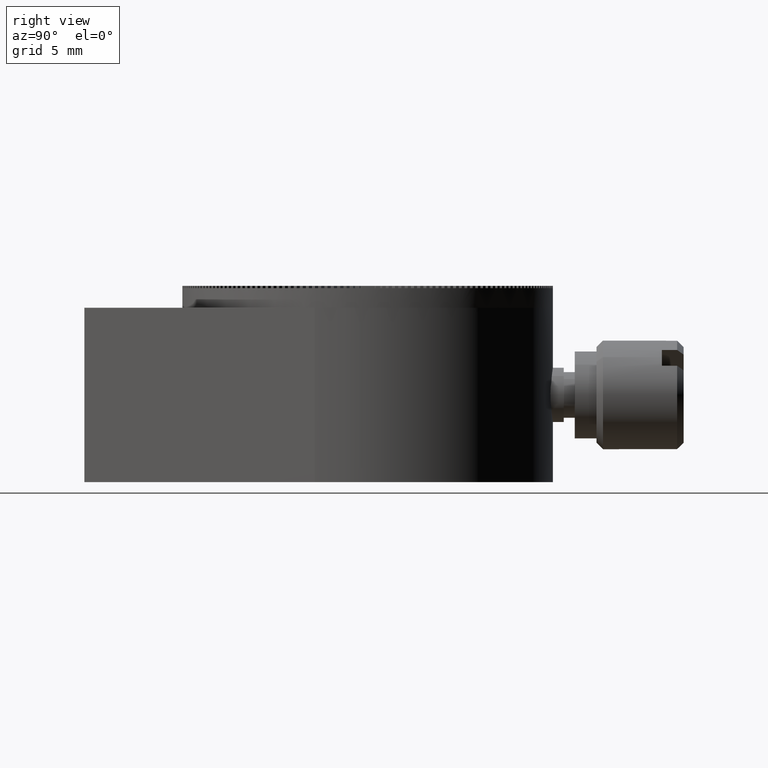
[diagram: clean part render]
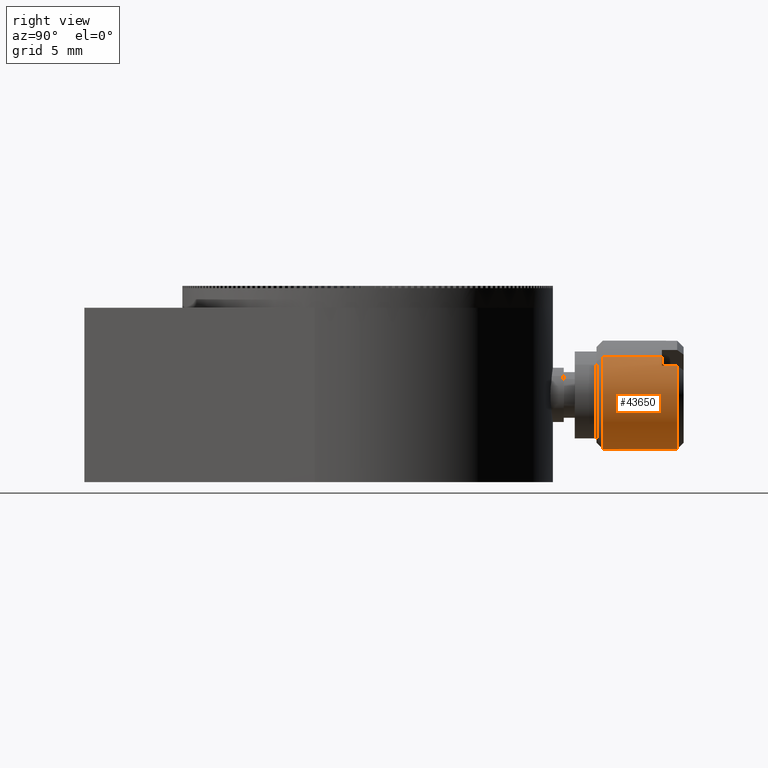
[diagram: same view with one face highlighted and labeled with its STEP entity id]
A machine part, right view. The second image highlights one B-rep face of the part: STEP entity #43650.
In plain terms, the highlighted cylindrical surface (partial cylindrical patch) has radius 2.5 mm, axis along (-0, -1, 0).
Its self-contained STEP definition (entity closure, byte-faithful):
#908 = EDGE_LOOP ( 'NONE', ( #43236, #14754, #36336, #49756, #45822, #11884, #62226, #10925 ) ) ;
#967 = DIRECTION ( 'NONE',  ( 0.000000000000000000, 0.000000000000000000, 1.000000000000000000 ) ) ;
#1867 = CARTESIAN_POINT ( 'NONE',  ( 0.5000000000000000000, 4.699999999999999289, 2.449489742783178325 ) ) ;
#2856 = CARTESIAN_POINT ( 'NONE',  ( 0.000000000000000000, 4.000000000000000000, -2.500000000000000000 ) ) ;
#4821 = VECTOR ( 'NONE', #29275, 1000.000000000000000 ) ;
#5715 = EDGE_CURVE ( 'NONE', #47017, #42769, #57062, .T. ) ;
#6314 = CARTESIAN_POINT ( 'NONE',  ( 0.000000000000000000, 5.000000000000000000, 0.000000000000000000 ) ) ;
#7004 = CARTESIAN_POINT ( 'NONE',  ( 0.5000000000000000000, 5.000000000000000000, 2.449489742783178325 ) ) ;
#7009 = EDGE_CURVE ( 'NONE', #57847, #35879, #58336, .T. ) ;
#9555 = CIRCLE ( 'NONE', #36247, 2.500000000000000000 ) ;
#10052 = VECTOR ( 'NONE', #12141, 1000.000000000000000 ) ;
#10499 = DIRECTION ( 'NONE',  ( 0.000000000000000000, 0.000000000000000000, -1.000000000000000000 ) ) ;
#10925 = ORIENTED_EDGE ( 'NONE', *, *, #5715, .T. ) ;
#11884 = ORIENTED_EDGE ( 'NONE', *, *, #60293, .T. ) ;
#12141 = DIRECTION ( 'NONE',  ( -0.000000000000000000, -1.000000000000000000, -0.000000000000000000 ) ) ;
#12897 = AXIS2_PLACEMENT_3D ( 'NONE', #43222, #62815, #38416 ) ;
#13852 = CARTESIAN_POINT ( 'NONE',  ( 0.5000000000000000000, 4.000000000000000000, 2.449489742783178325 ) ) ;
#14754 = ORIENTED_EDGE ( 'NONE', *, *, #7009, .T. ) ;
#15374 = CARTESIAN_POINT ( 'NONE',  ( 3.061616997868383141E-16, 1.300000000000001155, 2.500000000000000000 ) ) ;
#16248 = VERTEX_POINT ( 'NONE', #29937 ) ;
#20650 = VERTEX_POINT ( 'NONE', #24905 ) ;
#21002 = AXIS2_PLACEMENT_3D ( 'NONE', #41572, #35807, #30985 ) ;
#24905 = CARTESIAN_POINT ( 'NONE',  ( 0.5000000000000000000, 4.699999999999999289, -2.449489742783178325 ) ) ;
#25425 = LINE ( 'NONE', #33792, #4821 ) ;
#26512 = VERTEX_POINT ( 'NONE', #55208 ) ;
#29275 = DIRECTION ( 'NONE',  ( -0.000000000000000000, -1.000000000000000000, -0.000000000000000000 ) ) ;
#29937 = CARTESIAN_POINT ( 'NONE',  ( 0.000000000000000000, 1.300000000000001155, -2.500000000000000000 ) ) ;
#30985 = DIRECTION ( 'NONE',  ( 0.000000000000000000, 0.000000000000000000, 1.000000000000000000 ) ) ;
#32105 = CIRCLE ( 'NONE', #37181, 2.500000000000000000 ) ;
#32970 = VERTEX_POINT ( 'NONE', #2856 ) ;
#33300 = DIRECTION ( 'NONE',  ( -0.000000000000000000, -1.000000000000000000, -0.000000000000000000 ) ) ;
#33507 = EDGE_CURVE ( 'NONE', #57847, #42769, #32105, .T. ) ;
#33792 = CARTESIAN_POINT ( 'NONE',  ( 0.000000000000000000, 5.000000000000000000, -2.500000000000000000 ) ) ;
#34894 = DIRECTION ( 'NONE',  ( -0.000000000000000000, -1.000000000000000000, -0.000000000000000000 ) ) ;
#35095 = EDGE_CURVE ( 'NONE', #20650, #47017, #9555, .T. ) ;
#35807 = DIRECTION ( 'NONE',  ( 0.000000000000000000, 1.000000000000000000, 0.000000000000000000 ) ) ;
#35879 = VERTEX_POINT ( 'NONE', #15374 ) ;
#36247 = AXIS2_PLACEMENT_3D ( 'NONE', #44932, #50359, #967 ) ;
#36336 = ORIENTED_EDGE ( 'NONE', *, *, #59250, .T. ) ;
#37014 = EDGE_CURVE ( 'NONE', #26512, #32970, #50665, .T. ) ;
#37165 = DIRECTION ( 'NONE',  ( 0.000000000000000000, 1.000000000000000000, 0.000000000000000000 ) ) ;
#37181 = AXIS2_PLACEMENT_3D ( 'NONE', #61450, #48234, #53373 ) ;
#38416 = DIRECTION ( 'NONE',  ( 0.000000000000000000, 0.000000000000000000, -1.000000000000000000 ) ) ;
#40522 = CIRCLE ( 'NONE', #12897, 2.500000000000000000 ) ;
#41022 = CARTESIAN_POINT ( 'NONE',  ( 0.5000000000000000000, 5.000000000000000000, -2.449489742783178325 ) ) ;
#41572 = CARTESIAN_POINT ( 'NONE',  ( 0.000000000000000000, 4.000000000000000000, 0.000000000000000000 ) ) ;
#42769 = VERTEX_POINT ( 'NONE', #13852 ) ;
#43222 = CARTESIAN_POINT ( 'NONE',  ( 0.000000000000000000, 1.300000000000001155, 0.000000000000000000 ) ) ;
#43236 = ORIENTED_EDGE ( 'NONE', *, *, #33507, .F. ) ;
#43650 = ADVANCED_FACE ( 'NONE', ( #44201 ), #44839, .T. ) ;
#44201 = FACE_OUTER_BOUND ( 'NONE', #908, .T. ) ;
#44839 = CYLINDRICAL_SURFACE ( 'NONE', #46940, 2.500000000000000000 ) ;
#44932 = CARTESIAN_POINT ( 'NONE',  ( 0.000000000000000000, 4.699999999999999289, 0.000000000000000000 ) ) ;
#45822 = ORIENTED_EDGE ( 'NONE', *, *, #37014, .F. ) ;
#45838 = LINE ( 'NONE', #41022, #61183 ) ;
#46940 = AXIS2_PLACEMENT_3D ( 'NONE', #6314, #34894, #10499 ) ;
#47017 = VERTEX_POINT ( 'NONE', #1867 ) ;
#47716 = CARTESIAN_POINT ( 'NONE',  ( 3.061616997868383141E-16, 4.000000000000000000, 2.500000000000000000 ) ) ;
#48234 = DIRECTION ( 'NONE',  ( 0.000000000000000000, 1.000000000000000000, 0.000000000000000000 ) ) ;
#49756 = ORIENTED_EDGE ( 'NONE', *, *, #61448, .F. ) ;
#50359 = DIRECTION ( 'NONE',  ( 0.000000000000000000, -1.000000000000000000, 0.000000000000000000 ) ) ;
#50665 = CIRCLE ( 'NONE', #21002, 2.500000000000000000 ) ;
#53373 = DIRECTION ( 'NONE',  ( 0.000000000000000000, 0.000000000000000000, 1.000000000000000000 ) ) ;
#54139 = CARTESIAN_POINT ( 'NONE',  ( 3.061616997868383141E-16, 5.000000000000000000, 2.500000000000000000 ) ) ;
#55208 = CARTESIAN_POINT ( 'NONE',  ( 0.5000000000000000000, 4.000000000000000000, -2.449489742783178325 ) ) ;
#57062 = LINE ( 'NONE', #7004, #10052 ) ;
#57299 = VECTOR ( 'NONE', #33300, 1000.000000000000000 ) ;
#57847 = VERTEX_POINT ( 'NONE', #47716 ) ;
#58336 = LINE ( 'NONE', #54139, #57299 ) ;
#59250 = EDGE_CURVE ( 'NONE', #35879, #16248, #40522, .T. ) ;
#60293 = EDGE_CURVE ( 'NONE', #26512, #20650, #45838, .T. ) ;
#61183 = VECTOR ( 'NONE', #37165, 1000.000000000000000 ) ;
#61448 = EDGE_CURVE ( 'NONE', #32970, #16248, #25425, .T. ) ;
#61450 = CARTESIAN_POINT ( 'NONE',  ( 0.000000000000000000, 4.000000000000000000, 0.000000000000000000 ) ) ;
#62226 = ORIENTED_EDGE ( 'NONE', *, *, #35095, .T. ) ;
#62815 = DIRECTION ( 'NONE',  ( 0.000000000000000000, 1.000000000000000000, 0.000000000000000000 ) ) ;